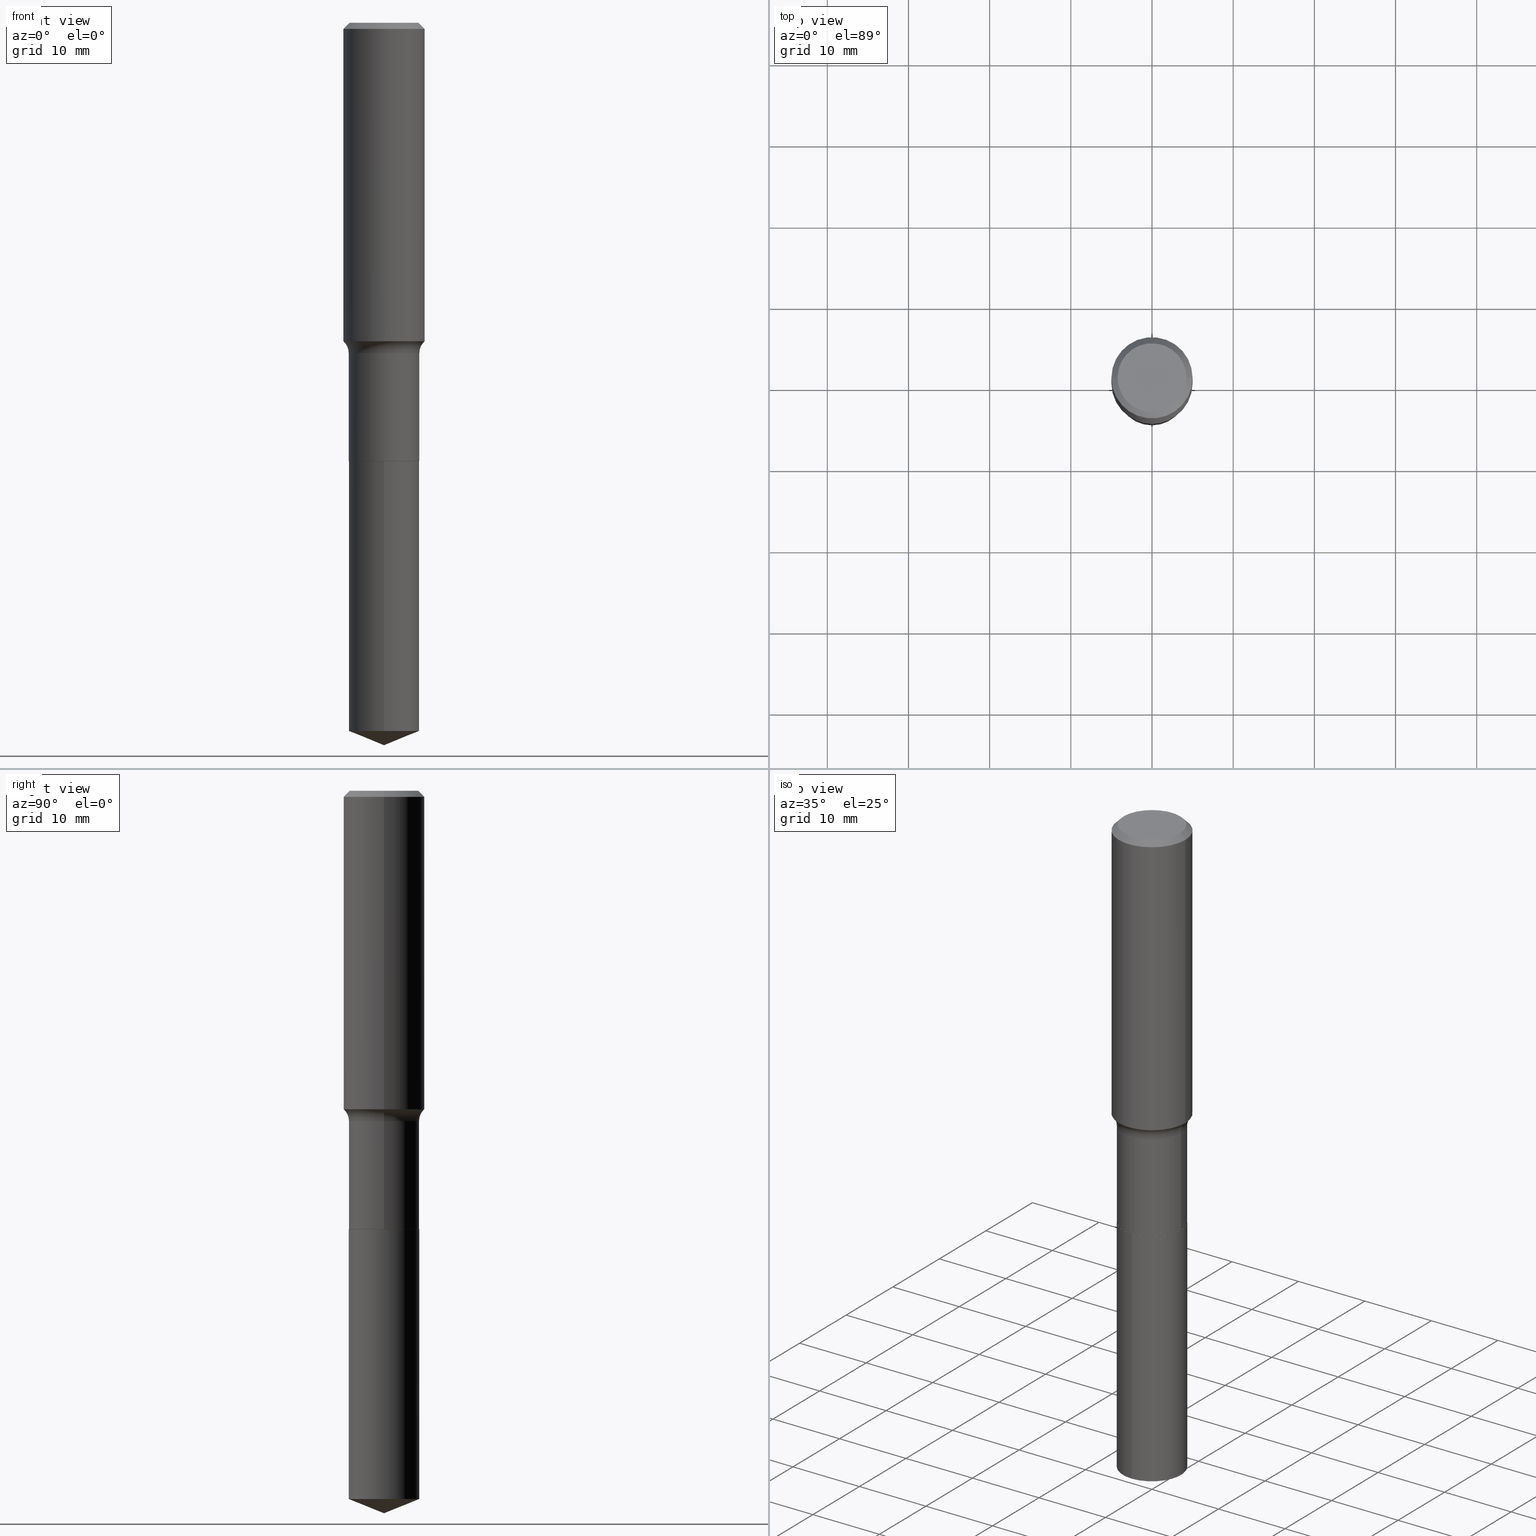
[diagram: canonical four-view strip — front | top / right | iso, engineering-drawing reading convention]
A machine part, canonical four-view strip (front | top / right | iso — engineering-drawing reading convention). The complete STEP part file that produces these views, byte-faithful:
ISO-10303-21;
HEADER;
FILE_DESCRIPTION (( 'STEP AP203' ),
    '1' );
FILE_NAME ('69177.STEP',
    '2024-04-19T17:19:37',
    ( '' ),
    ( '' ),
    'SwSTEP 2.0',
    'SolidWorks 2023',
    '' );
FILE_SCHEMA (( 'CONFIG_CONTROL_DESIGN' ));
ENDSEC;

DATA;
#1 = VERTEX_POINT ( 'NONE', #127 ) ;
#2 = ORIENTED_EDGE ( 'NONE', *, *, #244, .T. ) ;
#3 = AXIS2_PLACEMENT_3D ( 'NONE', #204, #172, #211 ) ;
#4 = LOCAL_TIME ( 13, 19, 37.00000000000000000, #8 ) ;
#5 = DATE_AND_TIME ( #266, #4 ) ;
#6 = ORIENTED_EDGE ( 'NONE', *, *, #350, .T. ) ;
#7 = CYLINDRICAL_SURFACE ( 'NONE', #92, 0.1712500000000000133 ) ;
#8 = COORDINATED_UNIVERSAL_TIME_OFFSET ( 5, 0, .BEHIND. ) ;
#9 = EDGE_CURVE ( 'NONE', #95, #182, #395, .T. ) ;
#10 = CARTESIAN_POINT ( 'NONE',  ( 5.198822135068982087E-29, -7.422540178246643119E-15, -2.125899999999999679 ) ) ;
#11 = VECTOR ( 'NONE', #389, 39.37007874015748854 ) ;
#12 = ORIENTED_EDGE ( 'NONE', *, *, #111, .F. ) ;
#13 = FACE_OUTER_BOUND ( 'NONE', #33, .T. ) ;
#14 = FACE_OUTER_BOUND ( 'NONE', #461, .T. ) ;
#15 = CARTESIAN_POINT ( 'NONE',  ( 3.917885574389206976E-29, -5.593702252960603405E-15, -1.602099999999999858 ) ) ;
#16 = APPROVAL ( #415, 'UNSPECIFIED' ) ;
#17 = DIRECTION ( 'NONE',  ( -2.445468806185136597E-29, 3.491481338843145583E-15, 1.000000000000000000 ) ) ;
#18 = PLANE ( 'NONE',  #100 ) ;
#19 = CARTESIAN_POINT ( 'NONE',  ( 8.568295373441645346E-29, -1.223434962097903768E-14, -3.503899999999999793 ) ) ;
#20 = LINE ( 'NONE', #434, #363 ) ;
#21 = DIRECTION ( 'NONE',  ( -6.982962677686265922E-15, -1.000000000000000000, 3.190479408658993096E-15 ) ) ;
#22 = DIRECTION ( 'NONE',  ( 2.445468806185136597E-29, -3.491481338843145583E-15, -1.000000000000000000 ) ) ;
#23 = CARTESIAN_POINT ( 'NONE',  ( 0.1968500000000002470, -6.766569378089535808E-15, -1.544322495727142641 ) ) ;
#24 = VECTOR ( 'NONE', #76, 39.37007874015748143 ) ;
#25 = CIRCLE ( 'NONE', #351, 0.1673224999999999851 ) ;
#26 = DIRECTION ( 'NONE',  ( 1.000000000000000000, -6.982962677686265922E-15, 4.876176775795935793E-29 ) ) ;
#27 = DIRECTION ( 'NONE',  ( -2.445359563184350382E-29, 3.491637781037997062E-15, 1.000000000000000000 ) ) ;
#28 = CARTESIAN_POINT ( 'NONE',  ( 0.1968500000000000527, -1.453583746094018101E-15, -0.02952750000000019595 ) ) ;
#29 = CARTESIAN_POINT ( 'NONE',  ( 8.399334429222156111E-29, -1.199243239908212747E-14, -3.434710508825729924 ) ) ;
#30 = APPROVAL_DATE_TIME ( #301, #16 ) ;
#31 = VECTOR ( 'NONE', #215, 39.37007874015748143 ) ;
#32 =( CONVERSION_BASED_UNIT ( 'INCH', #294 ) LENGTH_UNIT ( ) NAMED_UNIT ( #160 ) );
#33 = EDGE_LOOP ( 'NONE', ( #456, #366, #143, #285 ) ) ;
#34 = ADVANCED_FACE ( 'NONE', ( #13 ), #7, .T. ) ;
#35 = CC_DESIGN_APPROVAL ( #135, ( #440 ) ) ;
#36 = ORIENTED_EDGE ( 'NONE', *, *, #405, .T. ) ;
#37 = FACE_OUTER_BOUND ( 'NONE', #68, .T. ) ;
#38 = ORIENTED_EDGE ( 'NONE', *, *, #231, .T. ) ;
#39 = ORIENTED_EDGE ( 'NONE', *, *, #256, .F. ) ;
#40 = ORIENTED_EDGE ( 'NONE', *, *, #81, .F. ) ;
#41 = AXIS2_PLACEMENT_3D ( 'NONE', #10, #359, #21 ) ;
#42 = VECTOR ( 'NONE', #326, 39.37007874015748143 ) ;
#43 = ADVANCED_FACE ( 'NONE', ( #466 ), #459, .T. ) ;
#44 = FACE_OUTER_BOUND ( 'NONE', #226, .T. ) ;
#45 = PLANE ( 'NONE',  #3 ) ;
#46 = PRODUCT_DEFINITION_SHAPE ( 'NONE', 'NONE',  #193 ) ;
#47 = CARTESIAN_POINT ( 'NONE',  ( 0.1707500000000000129, -8.614881055461571866E-15, -2.125899999999999679 ) ) ;
#48 = EDGE_CURVE ( 'NONE', #296, #182, #49, .T. ) ;
#49 = CIRCLE ( 'NONE', #41, 0.1712500000000000133 ) ;
#50 = DIRECTION ( 'NONE',  ( -2.445468806185136597E-29, 3.491481338843145583E-15, 1.000000000000000000 ) ) ;
#51 = UNCERTAINTY_MEASURE_WITH_UNIT (LENGTH_MEASURE( 1.000000000000000082E-05 ), #32, 'distance_accuracy_value', 'NONE');
#52 = CARTESIAN_POINT ( 'NONE',  ( 0.1712499999999999856, -1.195832358553773135E-15, 8.350452728550539064E-30 ) ) ;
#53 = FACE_OUTER_BOUND ( 'NONE', #413, .T. ) ;
#54 = DIRECTION ( 'NONE',  ( -2.445468806185136597E-29, 3.491481338843145583E-15, 1.000000000000000000 ) ) ;
#55 = DIRECTION ( 'NONE',  ( 1.000000000000000000, -6.982962677686266711E-15, 4.876176775795935793E-29 ) ) ;
#56 = DIRECTION ( 'NONE',  ( -6.982962677686265922E-15, -1.000000000000000000, 3.190479408658993096E-15 ) ) ;
#57 = AXIS2_PLACEMENT_3D ( 'NONE', #360, #22, #438 ) ;
#58 = EDGE_CURVE ( 'NONE', #425, #248, #237, .T. ) ;
#59 = DIRECTION ( 'NONE',  ( -0.7071067811865459074, 2.468850131082239706E-15, -0.7071067811865492381 ) ) ;
#60 = CARTESIAN_POINT ( 'NONE',  ( 0.000000000000000000, 0.000000000000000000, 0.000000000000000000 ) ) ;
#61 = CC_DESIGN_PERSON_AND_ORGANIZATION_ASSIGNMENT ( #96, #373, ( #193 ) ) ;
#62 = DATE_AND_TIME ( #299, #291 ) ;
#63 = CLOSED_SHELL ( 'NONE', ( #478, #205, #325, #34, #67 ) ) ;
#64 = AXIS2_PLACEMENT_3D ( 'NONE', #419, #27, #176 ) ;
#65 = ORIENTED_EDGE ( 'NONE', *, *, #102, .F. ) ;
#66 = CARTESIAN_POINT ( 'NONE',  ( 5.197599400665889285E-29, -7.420794437577220826E-15, -2.125399999999999956 ) ) ;
#67 = ADVANCED_FACE ( 'NONE', ( #53 ), #45, .F. ) ;
#68 = EDGE_LOOP ( 'NONE', ( #335, #72, #426, #90 ) ) ;
#69 = AXIS2_PLACEMENT_3D ( 'NONE', #162, #284, #252 ) ;
#70 = CIRCLE ( 'NONE', #490, 0.07799999999999995826 ) ;
#71 = VERTEX_POINT ( 'NONE', #23 ) ;
#72 = ORIENTED_EDGE ( 'NONE', *, *, #424, .T. ) ;
#73 = ORIENTED_EDGE ( 'NONE', *, *, #487, .T. ) ;
#74 = DIRECTION ( 'NONE',  ( -1.000000000000000000, 6.982962677686265922E-15, -4.876176775795935793E-29 ) ) ;
#75 = DIRECTION ( 'NONE',  ( -2.445468806185136597E-29, 3.491481338843145583E-15, 1.000000000000000000 ) ) ;
#76 = DIRECTION ( 'NONE',  ( -2.445468806185136877E-29, 3.491481338843145188E-15, 1.000000000000000000 ) ) ;
#77 = CIRCLE ( 'NONE', #145, 0.1673224999999999851 ) ;
#78 = CONICAL_SURFACE ( 'NONE', #423, 97.44436430772920232, 1.186823891356147742 ) ;
#79 = LINE ( 'NONE', #28, #189 ) ;
#80 = DIRECTION ( 'NONE',  ( 2.445468806185136597E-29, -3.491481338843145583E-15, -1.000000000000000000 ) ) ;
#81 = EDGE_CURVE ( 'NONE', #191, #268, #316, .T. ) ;
#82 = CARTESIAN_POINT ( 'NONE',  ( -0.1707500000000000129, -6.209288456936270777E-15, -2.125899999999999679 ) ) ;
#83 = TOROIDAL_SURFACE ( 'NONE', #330, 0.2492499999999999438, 0.07799999999999999989 ) ;
#84 = CARTESIAN_POINT ( 'NONE',  ( -1.195832358553721070E-15, -0.1712500000000074241, -2.125899999999999235 ) ) ;
#85 = DIRECTION ( 'NONE',  ( -2.445359563184350382E-29, 3.491637781037997062E-15, 1.000000000000000000 ) ) ;
#86 = ADVANCED_FACE ( 'NONE', ( #472 ), #412, .F. ) ;
#87 = APPLICATION_CONTEXT ( 'configuration controlled 3d designs of mechanical parts and assemblies' ) ;
#88 = DIRECTION ( 'NONE',  ( 1.000000000000000000, -6.982962677686265922E-15, 0.000000000000000000 ) ) ;
#89 = PERSON_AND_ORGANIZATION ( #393, #198 ) ;
#90 = ORIENTED_EDGE ( 'NONE', *, *, #391, .F. ) ;
#91 = APPROVAL_STATUS ( 'not_yet_approved' ) ;
#92 = AXIS2_PLACEMENT_3D ( 'NONE', #150, #388, #465 ) ;
#93 = FACE_OUTER_BOUND ( 'NONE', #228, .T. ) ;
#94 = CARTESIAN_POINT ( 'NONE',  ( -0.1968500000000002470, -3.993269799643232468E-15, -1.544322495727142641 ) ) ;
#95 = VERTEX_POINT ( 'NONE', #474 ) ;
#96 = PERSON_AND_ORGANIZATION ( #393, #198 ) ;
#97 = EDGE_CURVE ( 'NONE', #191, #71, #304, .T. ) ;
#98 = EDGE_LOOP ( 'NONE', ( #235, #300 ) ) ;
#99 = AXIS2_PLACEMENT_3D ( 'NONE', #29, #489, #286 ) ;
#100 = AXIS2_PLACEMENT_3D ( 'NONE', #365, #217, #26 ) ;
#101 = ORIENTED_EDGE ( 'NONE', *, *, #97, .T. ) ;
#102 = EDGE_CURVE ( 'NONE', #71, #177, #20, .T. ) ;
#103 = ORIENTED_EDGE ( 'NONE', *, *, #362, .F. ) ;
#104 = DATE_AND_TIME ( #148, #446 ) ;
#105 = ORIENTED_EDGE ( 'NONE', *, *, #353, .F. ) ;
#106 = CARTESIAN_POINT ( 'NONE',  ( -5.008488096090108951E-47, 7.150793614331948590E-33, 2.048068690724054183E-18 ) ) ;
#107 = AXIS2_PLACEMENT_3D ( 'NONE', #356, #112, #159 ) ;
#108 = AXIS2_PLACEMENT_3D ( 'NONE', #287, #50, #118 ) ;
#109 = CARTESIAN_POINT ( 'NONE',  ( -1.001697619218021790E-46, 1.430158722866389718E-32, 4.096137381448108366E-18 ) ) ;
#110 = PERSON_AND_ORGANIZATION ( #393, #198 ) ;
#111 = EDGE_CURVE ( 'NONE', #220, #95, #319, .T. ) ;
#112 = DIRECTION ( 'NONE',  ( -2.445468806185136597E-29, 3.491481338843145583E-15, 1.000000000000000000 ) ) ;
#113 = DIRECTION ( 'NONE',  ( 1.000000000000000000, -6.982962677686265133E-15, 0.000000000000000000 ) ) ;
#114 = CARTESIAN_POINT ( 'NONE',  ( -0.1707500000000000129, -6.206639229762160364E-15, -2.125899999999999679 ) ) ;
#115 = PRODUCT_RELATED_PRODUCT_CATEGORY ( 'detail', '', ( #463 ) ) ;
#116 = DIRECTION ( 'NONE',  ( 1.000000000000000000, -6.982962677686269866E-15, 0.000000000000000000 ) ) ;
#117 = DESIGN_CONTEXT ( 'detailed design', #87, 'design' ) ;
#118 = DIRECTION ( 'NONE',  ( 1.000000000000000000, -6.982962677686266711E-15, 4.876176775795935793E-29 ) ) ;
#119 = APPLICATION_CONTEXT ( 'configuration controlled 3d designs of mechanical parts and assemblies' ) ;
#120 = DIRECTION ( 'NONE',  ( 2.438088387897960049E-29, -3.491481338843145188E-15, -1.000000000000000000 ) ) ;
#121 = CONICAL_SURFACE ( 'NONE', #290, 0.1707500000000000129, 0.7853981633975507526 ) ;
#122 = AXIS2_PLACEMENT_3D ( 'NONE', #179, #470, #116 ) ;
#123 = FACE_OUTER_BOUND ( 'NONE', #187, .T. ) ;
#124 = DIRECTION ( 'NONE',  ( 6.588037525764799179E-15, 0.9271838545667900888, 0.3746065934159054645 ) ) ;
#125 = VERTEX_POINT ( 'NONE', #47 ) ;
#126 = ADVANCED_FACE ( 'NONE', ( #44 ), #201, .T. ) ;
#127 = CARTESIAN_POINT ( 'NONE',  ( -1.195832358553689318E-15, -0.1712500000000120037, -3.434710508825729480 ) ) ;
#128 = CARTESIAN_POINT ( 'NONE',  ( -1.001697619218021790E-46, 1.430158722866389718E-32, 4.096137381448108366E-18 ) ) ;
#129 = CARTESIAN_POINT ( 'NONE',  ( -0.1673224999999999851, 1.219954130253505460E-15, 4.096137381439757534E-18 ) ) ;
#130 = VERTEX_POINT ( 'NONE', #114 ) ;
#131 = DIRECTION ( 'NONE',  ( -2.445468806185136597E-29, 3.491481338843145583E-15, 1.000000000000000000 ) ) ;
#132 = CIRCLE ( 'NONE', #386, 0.1968500000000000527 ) ;
#133 = PERSON_AND_ORGANIZATION ( #393, #198 ) ;
#134 = ADVANCED_FACE ( 'NONE', ( #216 ), #83, .F. ) ;
#135 = APPROVAL ( #91, 'UNSPECIFIED' ) ;
#136 = DIRECTION ( 'NONE',  ( 1.000000000000000000, -6.982962677686268288E-15, 0.000000000000000000 ) ) ;
#137 = AXIS2_PLACEMENT_3D ( 'NONE', #208, #75, #214 ) ;
#138 = CIRCLE ( 'NONE', #122, 0.1968500000000002470 ) ;
#139 = EDGE_LOOP ( 'NONE', ( #38, #199, #240, #269 ) ) ;
#140 = EDGE_CURVE ( 'NONE', #95, #1, #370, .T. ) ;
#141 = COORDINATED_UNIVERSAL_TIME_OFFSET ( 5, 0, .BEHIND. ) ;
#142 = ORIENTED_EDGE ( 'NONE', *, *, #362, .T. ) ;
#143 = ORIENTED_EDGE ( 'NONE', *, *, #400, .T. ) ;
#144 = EDGE_CURVE ( 'NONE', #248, #425, #397, .T. ) ;
#145 = AXIS2_PLACEMENT_3D ( 'NONE', #109, #306, #408 ) ;
#146 = CIRCLE ( 'NONE', #282, 0.07799999999999995826 ) ;
#147 = VERTEX_POINT ( 'NONE', #430 ) ;
#148 = CALENDAR_DATE ( 2024, 19, 4 ) ;
#149 = ORIENTED_EDGE ( 'NONE', *, *, #288, .F. ) ;
#150 = CARTESIAN_POINT ( 'NONE',  ( 5.198822135068982087E-29, -7.422540178246643119E-15, -2.125899999999999679 ) ) ;
#151 = PERSON_AND_ORGANIZATION_ROLE ( 'creator' ) ;
#152 = CARTESIAN_POINT ( 'NONE',  ( 0.000000000000000000, 0.000000000000000000, 0.000000000000000000 ) ) ;
#153 = ADVANCED_FACE ( 'NONE', ( #323 ), #202, .F. ) ;
#154 = DIRECTION ( 'NONE',  ( -2.445359563184350382E-29, 3.491637781037997457E-15, 1.000000000000000000 ) ) ;
#155 = AXIS2_PLACEMENT_3D ( 'NONE', #167, #212, #321 ) ;
#156 = CARTESIAN_POINT ( 'NONE',  ( 1.216804434989223333E-15, 0.1712499999999926026, -2.125900000000000567 ) ) ;
#157 = APPROVAL_PERSON_ORGANIZATION ( #372, #135, #381 ) ;
#158 = DIRECTION ( 'NONE',  ( 1.000000000000000000, -6.982962677686267499E-15, 4.876294436782262290E-29 ) ) ;
#159 = DIRECTION ( 'NONE',  ( 1.000000000000000000, -6.982962677686269866E-15, 0.000000000000000000 ) ) ;
#160 = DIMENSIONAL_EXPONENTS ( 1.000000000000000000, 0.000000000000000000, 0.000000000000000000, 0.000000000000000000, 0.000000000000000000, 0.000000000000000000, 0.000000000000000000 ) ;
#161 = CARTESIAN_POINT ( 'NONE',  ( 7.220858017463209485E-31, -1.030947152326916609E-16, -0.02952750000000019595 ) ) ;
#162 = CARTESIAN_POINT ( 'NONE',  ( 3.917885574389206976E-29, -5.593702252960603405E-15, -1.602099999999999858 ) ) ;
#163 = CYLINDRICAL_SURFACE ( 'NONE', #229, 0.1712499999999999856 ) ;
#164 = DIRECTION ( 'NONE',  ( -2.445468806185136877E-29, 3.491481338843145188E-15, 1.000000000000000000 ) ) ;
#165 = EDGE_CURVE ( 'NONE', #220, #1, #238, .T. ) ;
#166 = ORIENTED_EDGE ( 'NONE', *, *, #278, .T. ) ;
#167 = CARTESIAN_POINT ( 'NONE',  ( 3.917885574389206976E-29, -5.593702252960603405E-15, -1.602099999999999858 ) ) ;
#168 = VECTOR ( 'NONE', #59, 39.37007874015748143 ) ;
#169 = CARTESIAN_POINT ( 'NONE',  ( 3.917885574389206976E-29, -5.593702252960603405E-15, -1.602099999999999858 ) ) ;
#170 = CC_DESIGN_APPROVAL ( #337, ( #387 ) ) ;
#171 = CARTESIAN_POINT ( 'NONE',  ( 0.1712500000000000133, -8.616626796130994158E-15, -2.125399999999999956 ) ) ;
#172 = DIRECTION ( 'NONE',  ( 2.445359563184349822E-29, -3.491637781037997457E-15, -1.000000000000000000 ) ) ;
#173 = CC_DESIGN_PERSON_AND_ORGANIZATION_ASSIGNMENT ( #196, #151, ( #440 ) ) ;
#174 = ORIENTED_EDGE ( 'NONE', *, *, #48, .T. ) ;
#175 = DIRECTION ( 'NONE',  ( 0.7071067811865459074, -7.319954787623251312E-15, -0.7071067811865492381 ) ) ;
#176 = DIRECTION ( 'NONE',  ( -6.982962677686265922E-15, -1.000000000000000000, 3.498761904101799553E-15 ) ) ;
#177 = VERTEX_POINT ( 'NONE', #467 ) ;
#178 = EDGE_CURVE ( 'NONE', #147, #380, #77, .T. ) ;
#179 = CARTESIAN_POINT ( 'NONE',  ( 3.776592489990706683E-29, -5.391973174986991833E-15, -1.544322495727142641 ) ) ;
#180 = AXIS2_PLACEMENT_3D ( 'NONE', #106, #120, #74 ) ;
#181 = CARTESIAN_POINT ( 'NONE',  ( -0.1712500000000000133, -5.290443910279740453E-15, -2.125399999999999956 ) ) ;
#182 = VERTEX_POINT ( 'NONE', #453 ) ;
#183 = PERSON_AND_ORGANIZATION_ROLE ( 'design_owner' ) ;
#184 = DIRECTION ( 'NONE',  ( -2.445468806185136597E-29, 3.491481338843145583E-15, 1.000000000000000000 ) ) ;
#185 = EDGE_CURVE ( 'NONE', #182, #296, #439, .T. ) ;
#186 = DIRECTION ( 'NONE',  ( -6.982962677686265922E-15, -1.000000000000000000, 3.190479408658993096E-15 ) ) ;
#187 = EDGE_LOOP ( 'NONE', ( #103, #105, #166, #454 ) ) ;
#188 = DIRECTION ( 'NONE',  ( -1.000000000000000000, 7.105427357601001859E-15, 0.000000000000000000 ) ) ;
#189 = VECTOR ( 'NONE', #175, 39.37007874015748143 ) ;
#190 = LOCAL_TIME ( 13, 19, 37.00000000000000000, #431 ) ;
#191 = VERTEX_POINT ( 'NONE', #94 ) ;
#192 = ORIENTED_EDGE ( 'NONE', *, *, #353, .T. ) ;
#193 = PRODUCT_DEFINITION ( 'UNKNOWN', '', #440, #117 ) ;
#194 = PERSON_AND_ORGANIZATION_ROLE ( 'design_supplier' ) ;
#195 = ORIENTED_EDGE ( 'NONE', *, *, #278, .F. ) ;
#196 = PERSON_AND_ORGANIZATION ( #393, #198 ) ;
#197 = VECTOR ( 'NONE', #209, 39.37007874015748143 ) ;
#198 = ORGANIZATION ( 'UNSPECIFIED', 'UNSPECIFIED', '' ) ;
#199 = ORIENTED_EDGE ( 'NONE', *, *, #376, .T. ) ;
#200 = CYLINDRICAL_SURFACE ( 'NONE', #354, 0.1712499999999999856 ) ;
#201 = CYLINDRICAL_SURFACE ( 'NONE', #482, 0.1968500000000001360 ) ;
#202 = PLANE ( 'NONE',  #180 ) ;
#203 = SHAPE_DEFINITION_REPRESENTATION ( #46, #346 ) ;
#204 = CARTESIAN_POINT ( 'NONE',  ( 5.198822135068982087E-29, -7.422540178246643119E-15, -2.125899999999999679 ) ) ;
#205 = ADVANCED_FACE ( 'NONE', ( #261 ), #320, .T. ) ;
#206 = CARTESIAN_POINT ( 'NONE',  ( 5.198822135068982087E-29, -7.422540178246643119E-15, -2.125899999999999679 ) ) ;
#207 = CARTESIAN_POINT ( 'NONE',  ( 0.000000000000000000, 0.000000000000000000, 0.000000000000000000 ) ) ;
#208 = CARTESIAN_POINT ( 'NONE',  ( 7.220858017463209485E-31, -1.030947152326916609E-16, -0.02952750000000019595 ) ) ;
#209 = DIRECTION ( 'NONE',  ( -2.445468806185136877E-29, 3.491481338843145188E-15, 1.000000000000000000 ) ) ;
#210 = CARTESIAN_POINT ( 'NONE',  ( -0.1968500000000000527, -1.348830569766083183E-15, -0.02952750000000019595 ) ) ;
#211 = DIRECTION ( 'NONE',  ( 6.982962677686265922E-15, 1.000000000000000000, -3.491637781037997457E-15 ) ) ;
#212 = DIRECTION ( 'NONE',  ( -2.445468806185136597E-29, 3.491481338843145583E-15, 1.000000000000000000 ) ) ;
#213 = CARTESIAN_POINT ( 'NONE',  ( 0.1712499999999999578, -6.789534611514375948E-15, -1.602099999999999858 ) ) ;
#214 = DIRECTION ( 'NONE',  ( 1.000000000000000000, -6.982962677686266711E-15, 0.000000000000000000 ) ) ;
#215 = DIRECTION ( 'NONE',  ( -0.7071067811866199593, 7.493145998870616062E-15, 0.7071067811864750752 ) ) ;
#216 = FACE_OUTER_BOUND ( 'NONE', #483, .T. ) ;
#217 = DIRECTION ( 'NONE',  ( -2.438088387897960049E-29, 3.491481338843145188E-15, 1.000000000000000000 ) ) ;
#218 = CC_DESIGN_PERSON_AND_ORGANIZATION_ASSIGNMENT ( #236, #348, ( #387 ) ) ;
#219 = APPLICATION_PROTOCOL_DEFINITION ( 'international standard', 'config_control_design', 1994, #87 ) ;
#220 = VERTEX_POINT ( 'NONE', #19 ) ;
#221 = AXIS2_PLACEMENT_3D ( 'NONE', #485, #416, #186 ) ;
#222 = DATE_TIME_ROLE ( 'creation_date' ) ;
#223 = APPROVAL_PERSON_ORGANIZATION ( #273, #337, #427 ) ;
#224 = CALENDAR_DATE ( 2024, 19, 4 ) ;
#225 = ADVANCED_FACE ( 'NONE', ( #329 ), #163, .T. ) ;
#226 = EDGE_LOOP ( 'NONE', ( #36, #234, #39, #65 ) ) ;
#227 = CARTESIAN_POINT ( 'NONE',  ( 0.2492499999999999438, -7.334205700373904783E-15, -1.602099999999999858 ) ) ;
#228 = EDGE_LOOP ( 'NONE', ( #307, #352, #255, #420 ) ) ;
#229 = AXIS2_PLACEMENT_3D ( 'NONE', #60, #318, #55 ) ;
#230 = AXIS2_PLACEMENT_3D ( 'NONE', #473, #443, #289 ) ;
#231 = EDGE_CURVE ( 'NONE', #125, #130, #340, .T. ) ;
#232 = EDGE_LOOP ( 'NONE', ( #339, #262, #464, #428 ) ) ;
#233 = COORDINATED_UNIVERSAL_TIME_OFFSET ( 5, 0, .BEHIND. ) ;
#234 = ORIENTED_EDGE ( 'NONE', *, *, #81, .T. ) ;
#235 = ORIENTED_EDGE ( 'NONE', *, *, #231, .F. ) ;
#236 = PERSON_AND_ORGANIZATION ( #393, #198 ) ;
#237 = CIRCLE ( 'NONE', #155, 0.1712499999999999578 ) ;
#238 = LINE ( 'NONE', #312, #11 ) ;
#239 = ADVANCED_FACE ( 'NONE', ( #37 ), #121, .T. ) ;
#240 = ORIENTED_EDGE ( 'NONE', *, *, #418, .F. ) ;
#241 = MANIFOLD_SOLID_BREP ( 'Body-Move/Copy2[1]', #63 ) ;
#242 = DIRECTION ( 'NONE',  ( -2.445468806185136597E-29, 3.491481338843145583E-15, 1.000000000000000000 ) ) ;
#243 = VECTOR ( 'NONE', #154, 39.37007874015748143 ) ;
#244 = EDGE_CURVE ( 'NONE', #435, #425, #390, .T. ) ;
#245 = CIRCLE ( 'NONE', #260, 0.1707500000000000129 ) ;
#246 = DIRECTION ( 'NONE',  ( -2.445468806185136597E-29, 3.491481338843145583E-15, 1.000000000000000000 ) ) ;
#247 = LINE ( 'NONE', #82, #31 ) ;
#248 = VERTEX_POINT ( 'NONE', #213 ) ;
#249 = FACE_OUTER_BOUND ( 'NONE', #281, .T. ) ;
#250 = DIRECTION ( 'NONE',  ( -2.445359563184350382E-29, 3.491637781037997062E-15, 1.000000000000000000 ) ) ;
#251 = ADVANCED_FACE ( 'NONE', ( #14 ), #200, .T. ) ;
#252 = DIRECTION ( 'NONE',  ( 1.000000000000000000, -6.982962677686265922E-15, 4.883557194083111780E-29 ) ) ;
#253 = AXIS2_PLACEMENT_3D ( 'NONE', #272, #429, #433 ) ;
#254 = DIRECTION ( 'NONE',  ( -2.445359563184350382E-29, 3.491637781037997457E-15, 1.000000000000000000 ) ) ;
#255 = ORIENTED_EDGE ( 'NONE', *, *, #48, .F. ) ;
#256 = EDGE_CURVE ( 'NONE', #177, #268, #132, .T. ) ;
#257 = CLOSED_SHELL ( 'NONE', ( #43, #264, #126, #134, #225, #251, #86, #314, #295, #153, #383, #239 ) ) ;
#258 = CONICAL_SURFACE ( 'NONE', #450, 0.1968500000000000527, 0.7853981633974459475 ) ;
#259 = DIRECTION ( 'NONE',  ( -2.445468806185136597E-29, 3.491481338843145583E-15, 1.000000000000000000 ) ) ;
#260 = AXIS2_PLACEMENT_3D ( 'NONE', #452, #259, #263 ) ;
#261 = FACE_OUTER_BOUND ( 'NONE', #374, .T. ) ;
#262 = ORIENTED_EDGE ( 'NONE', *, *, #405, .F. ) ;
#263 = DIRECTION ( 'NONE',  ( 1.000000000000000000, -6.982962677686265922E-15, 0.000000000000000000 ) ) ;
#264 = ADVANCED_FACE ( 'NONE', ( #315 ), #258, .T. ) ;
#265 = ORIENTED_EDGE ( 'NONE', *, *, #165, .T. ) ;
#266 = CALENDAR_DATE ( 2024, 19, 4 ) ;
#267 = APPROVAL_PERSON_ORGANIZATION ( #89, #16, #292 ) ;
#268 = VERTEX_POINT ( 'NONE', #210 ) ;
#269 = ORIENTED_EDGE ( 'NONE', *, *, #334, .F. ) ;
#270 = APPROVAL_STATUS ( 'not_yet_approved' ) ;
#271 = ORIENTED_EDGE ( 'NONE', *, *, #391, .T. ) ;
#272 = CARTESIAN_POINT ( 'NONE',  ( 5.198822135068982087E-29, -7.422540178246643119E-15, -2.125899999999999679 ) ) ;
#273 = PERSON_AND_ORGANIZATION ( #393, #198 ) ;
#274 = CONICAL_SURFACE ( 'NONE', #57, 0.1968500000000000527, 0.7853981633974459475 ) ;
#275 = AXIS2_PLACEMENT_3D ( 'NONE', #336, #85, #455 ) ;
#276 = CALENDAR_DATE ( 2024, 19, 4 ) ;
#277 = CARTESIAN_POINT ( 'NONE',  ( 7.220858017463209485E-31, -1.030947152326916609E-16, -0.02952750000000019595 ) ) ;
#278 = EDGE_CURVE ( 'NONE', #380, #268, #396, .T. ) ;
#279 = DIRECTION ( 'NONE',  ( -2.445359563184350382E-29, 3.491637781037997062E-15, 1.000000000000000000 ) ) ;
#280 = AXIS2_PLACEMENT_3D ( 'NONE', #206, #332, #88 ) ;
#281 = EDGE_LOOP ( 'NONE', ( #40, #101, #458, #149 ) ) ;
#282 = AXIS2_PLACEMENT_3D ( 'NONE', #227, #421, #375 ) ;
#283 = LINE ( 'NONE', #477, #42 ) ;
#284 = DIRECTION ( 'NONE',  ( -2.445468806185136597E-29, 3.491481338843145583E-15, 1.000000000000000000 ) ) ;
#285 = ORIENTED_EDGE ( 'NONE', *, *, #185, .F. ) ;
#286 = DIRECTION ( 'NONE',  ( -6.982962677686265922E-15, -1.000000000000000000, 3.190479408658993096E-15 ) ) ;
#287 = CARTESIAN_POINT ( 'NONE',  ( 0.000000000000000000, 0.000000000000000000, 0.000000000000000000 ) ) ;
#288 = EDGE_CURVE ( 'NONE', #268, #177, #298, .T. ) ;
#289 = DIRECTION ( 'NONE',  ( 1.000000000000000000, -6.982962677686268288E-15, 0.000000000000000000 ) ) ;
#290 = AXIS2_PLACEMENT_3D ( 'NONE', #328, #131, #406 ) ;
#291 = LOCAL_TIME ( 13, 19, 37.00000000000000000, #410 ) ;
#292 = APPROVAL_ROLE ( '' ) ;
#293 = DIRECTION ( 'NONE',  ( -2.445468806185136597E-29, 3.491481338843145583E-15, 1.000000000000000000 ) ) ;
#294 = LENGTH_MEASURE_WITH_UNIT ( LENGTH_MEASURE( 0.02539999999999999897 ), #484 );
#295 = ADVANCED_FACE ( 'NONE', ( #123 ), #274, .T. ) ;
#296 = VERTEX_POINT ( 'NONE', #317 ) ;
#297 = CARTESIAN_POINT ( 'NONE',  ( -0.1712499999999999578, -5.290443910279740453E-15, -1.602099999999999858 ) ) ;
#298 = CIRCLE ( 'NONE', #137, 0.1968500000000000527 ) ;
#299 = CALENDAR_DATE ( 2024, 19, 4 ) ;
#300 = ORIENTED_EDGE ( 'NONE', *, *, #424, .F. ) ;
#301 = DATE_AND_TIME ( #224, #476 ) ;
#302 = VERTEX_POINT ( 'NONE', #171 ) ;
#303 = ORIENTED_EDGE ( 'NONE', *, *, #350, .F. ) ;
#304 = CIRCLE ( 'NONE', #107, 0.1968500000000002470 ) ;
#305 = CIRCLE ( 'NONE', #230, 0.1712500000000000133 ) ;
#306 = DIRECTION ( 'NONE',  ( -2.445468806185136597E-29, 3.491481338843145583E-15, 1.000000000000000000 ) ) ;
#307 = ORIENTED_EDGE ( 'NONE', *, *, #368, .T. ) ;
#308 = DATE_AND_TIME ( #276, #190 ) ;
#309 = ORIENTED_EDGE ( 'NONE', *, *, #442, .F. ) ;
#310 = ORIENTED_EDGE ( 'NONE', *, *, #418, .T. ) ;
#311 = CC_DESIGN_DATE_AND_TIME_ASSIGNMENT ( #104, #384, ( #387 ) ) ;
#312 = CARTESIAN_POINT ( 'NONE',  ( 8.568295373441645346E-29, -1.223434962097903768E-14, -3.503899999999999793 ) ) ;
#313 =( GEOMETRIC_REPRESENTATION_CONTEXT ( 3 ) GLOBAL_UNCERTAINTY_ASSIGNED_CONTEXT ( ( #51 ) ) GLOBAL_UNIT_ASSIGNED_CONTEXT ( ( #32, #369, #407 ) ) REPRESENTATION_CONTEXT ( 'NONE', 'WORKASPACE' ) );
#314 = ADVANCED_FACE ( 'NONE', ( #249 ), #401, .T. ) ;
#315 = FACE_OUTER_BOUND ( 'NONE', #437, .T. ) ;
#316 = LINE ( 'NONE', #358, #24 ) ;
#317 = CARTESIAN_POINT ( 'NONE',  ( -1.195832358553721070E-15, -0.1712500000000074241, -2.125899999999999235 ) ) ;
#318 = DIRECTION ( 'NONE',  ( -2.445468806185136597E-29, 3.491481338843145583E-15, 1.000000000000000000 ) ) ;
#319 = LINE ( 'NONE', #475, #432 ) ;
#320 = CONICAL_SURFACE ( 'NONE', #64, 97.44436430772920232, 1.186823891356147742 ) ;
#321 = DIRECTION ( 'NONE',  ( 1.000000000000000000, -6.982962677686265133E-15, 0.000000000000000000 ) ) ;
#322 = CIRCLE ( 'NONE', #468, 0.1712500000000000133 ) ;
#323 = FACE_OUTER_BOUND ( 'NONE', #343, .T. ) ;
#324 = DIRECTION ( 'NONE',  ( -6.982962677686265922E-15, -1.000000000000000000, 3.498761904101799553E-15 ) ) ;
#325 = ADVANCED_FACE ( 'NONE', ( #355 ), #78, .T. ) ;
#326 = DIRECTION ( 'NONE',  ( 0.7071067811866199593, -2.468850131083015945E-15, 0.7071067811864750752 ) ) ;
#327 = ORIENTED_EDGE ( 'NONE', *, *, #144, .F. ) ;
#328 = CARTESIAN_POINT ( 'NONE',  ( 5.198822135068982087E-29, -7.422540178246643119E-15, -2.125899999999999679 ) ) ;
#329 = FACE_OUTER_BOUND ( 'NONE', #385, .T. ) ;
#330 = AXIS2_PLACEMENT_3D ( 'NONE', #169, #293, #409 ) ;
#331 = VECTOR ( 'NONE', #402, 39.37007874015748143 ) ;
#332 = DIRECTION ( 'NONE',  ( -2.445468806185136597E-29, 3.491481338843145583E-15, 1.000000000000000000 ) ) ;
#333 = DIRECTION ( 'NONE',  ( 7.105427357601001859E-15, 1.000000000000000000, -3.491481338843145583E-15 ) ) ;
#334 = EDGE_CURVE ( 'NONE', #125, #302, #283, .T. ) ;
#335 = ORIENTED_EDGE ( 'NONE', *, *, #376, .F. ) ;
#336 = CARTESIAN_POINT ( 'NONE',  ( 5.198822135068982087E-29, -7.422540178246643119E-15, -2.125899999999999679 ) ) ;
#337 = APPROVAL ( #270, 'UNSPECIFIED' ) ;
#338 = CYLINDRICAL_SURFACE ( 'NONE', #275, 0.1712500000000000133 ) ;
#339 = ORIENTED_EDGE ( 'NONE', *, *, #487, .F. ) ;
#340 = CIRCLE ( 'NONE', #280, 0.1707500000000000129 ) ;
#341 = CARTESIAN_POINT ( 'NONE',  ( 0.000000000000000000, 0.000000000000000000, 0.000000000000000000 ) ) ;
#342 = AXIS2_PLACEMENT_3D ( 'NONE', #66, #184, #136 ) ;
#343 = EDGE_LOOP ( 'NONE', ( #192, #377 ) ) ;
#344 = CC_DESIGN_PERSON_AND_ORGANIZATION_ASSIGNMENT ( #110, #194, ( #440 ) ) ;
#345 = SECURITY_CLASSIFICATION_LEVEL ( 'unclassified' ) ;
#346 = ADVANCED_BREP_SHAPE_REPRESENTATION ( '69177', ( #241, #411, #460 ), #313 ) ;
#347 = ORIENTED_EDGE ( 'NONE', *, *, #185, .T. ) ;
#348 = PERSON_AND_ORGANIZATION_ROLE ( 'classification_officer' ) ;
#349 = ORIENTED_EDGE ( 'NONE', *, *, #140, .F. ) ;
#350 = EDGE_CURVE ( 'NONE', #302, #248, #444, .T. ) ;
#351 = AXIS2_PLACEMENT_3D ( 'NONE', #128, #17, #158 ) ;
#352 = ORIENTED_EDGE ( 'NONE', *, *, #9, .T. ) ;
#353 = EDGE_CURVE ( 'NONE', #380, #147, #25, .T. ) ;
#354 = AXIS2_PLACEMENT_3D ( 'NONE', #152, #54, #404 ) ;
#355 = FACE_OUTER_BOUND ( 'NONE', #382, .T. ) ;
#356 = CARTESIAN_POINT ( 'NONE',  ( 3.776592489990706683E-29, -5.391973174986991833E-15, -1.544322495727142641 ) ) ;
#357 = CARTESIAN_POINT ( 'NONE',  ( -0.1968500000000000527, 1.271501487869850317E-15, -0.02952750000000019595 ) ) ;
#358 = CARTESIAN_POINT ( 'NONE',  ( -0.1968500000000001360, 1.398703375343758182E-15, -9.682923725166790684E-30 ) ) ;
#359 = DIRECTION ( 'NONE',  ( -2.445359563184350382E-29, 3.491637781037997062E-15, 1.000000000000000000 ) ) ;
#360 = CARTESIAN_POINT ( 'NONE',  ( 7.220858017463209485E-31, -1.030947152326916609E-16, -0.02952750000000019595 ) ) ;
#361 = CARTESIAN_POINT ( 'NONE',  ( -0.1712499999999999856, 1.216804434989171466E-15, -8.423676342061525262E-30 ) ) ;
#362 = EDGE_CURVE ( 'NONE', #147, #177, #79, .T. ) ;
#363 = VECTOR ( 'NONE', #164, 39.37007874015748143 ) ;
#364 = ORIENTED_EDGE ( 'NONE', *, *, #165, .F. ) ;
#365 = CARTESIAN_POINT ( 'NONE',  ( 5.198822135068982087E-29, -7.422540178246643119E-15, -2.125899999999999679 ) ) ;
#366 = ORIENTED_EDGE ( 'NONE', *, *, #140, .T. ) ;
#367 = CARTESIAN_POINT ( 'NONE',  ( 8.399334429222156111E-29, -1.199243239908212747E-14, -3.434710508825729924 ) ) ;
#368 = EDGE_CURVE ( 'NONE', #1, #95, #322, .T. ) ;
#369 =( NAMED_UNIT ( * ) PLANE_ANGLE_UNIT ( ) SI_UNIT ( $, .RADIAN. ) );
#370 = CIRCLE ( 'NONE', #99, 0.1712500000000000133 ) ;
#371 = VECTOR ( 'NONE', #254, 39.37007874015748143 ) ;
#372 = PERSON_AND_ORGANIZATION ( #393, #198 ) ;
#373 = PERSON_AND_ORGANIZATION_ROLE ( 'creator' ) ;
#374 = EDGE_LOOP ( 'NONE', ( #364, #422, #491 ) ) ;
#375 = DIRECTION ( 'NONE',  ( 1.000000000000000000, -6.982962677686274599E-15, 0.000000000000000000 ) ) ;
#376 = EDGE_CURVE ( 'NONE', #130, #435, #247, .T. ) ;
#377 = ORIENTED_EDGE ( 'NONE', *, *, #178, .T. ) ;
#378 = AXIS2_PLACEMENT_3D ( 'NONE', #15, #246, #113 ) ;
#379 = DIRECTION ( 'NONE',  ( 0.000000000000000000, 0.000000000000000000, 1.000000000000000000 ) ) ;
#380 = VERTEX_POINT ( 'NONE', #129 ) ;
#381 = APPROVAL_ROLE ( '' ) ;
#382 = EDGE_LOOP ( 'NONE', ( #12, #265, #349 ) ) ;
#383 = ADVANCED_FACE ( 'NONE', ( #398 ), #18, .F. ) ;
#384 = DATE_TIME_ROLE ( 'classification_date' ) ;
#385 = EDGE_LOOP ( 'NONE', ( #310, #2, #327, #303 ) ) ;
#386 = AXIS2_PLACEMENT_3D ( 'NONE', #161, #242, #471 ) ;
#387 = SECURITY_CLASSIFICATION ( '', '', #345 ) ;
#388 = DIRECTION ( 'NONE',  ( -2.445359563184350382E-29, 3.491637781037997062E-15, 1.000000000000000000 ) ) ;
#389 = DIRECTION ( 'NONE',  ( -6.474490251793184940E-15, -0.9271838545667873133, 0.3746065934159118482 ) ) ;
#390 = LINE ( 'NONE', #361, #197 ) ;
#391 = EDGE_CURVE ( 'NONE', #435, #302, #305, .T. ) ;
#392 = DIRECTION ( 'NONE',  ( -2.445468806185136597E-29, 3.491481338843145583E-15, 1.000000000000000000 ) ) ;
#393 = PERSON ( 'UNSPECIFIED', 'UNSPECIFIED', 'UNSPECIFIED', ('UNSPECIFIED'), ('UNSPECIFIED'), ('UNSPECIFIED') ) ;
#394 = CC_DESIGN_DATE_AND_TIME_ASSIGNMENT ( #62, #222, ( #193 ) ) ;
#395 = LINE ( 'NONE', #156, #243 ) ;
#396 = LINE ( 'NONE', #357, #168 ) ;
#397 = CIRCLE ( 'NONE', #378, 0.1712499999999999578 ) ;
#398 = FACE_OUTER_BOUND ( 'NONE', #98, .T. ) ;
#399 = ORIENTED_EDGE ( 'NONE', *, *, #244, .F. ) ;
#400 = EDGE_CURVE ( 'NONE', #1, #296, #445, .T. ) ;
#401 = CYLINDRICAL_SURFACE ( 'NONE', #108, 0.1968500000000001360 ) ;
#402 = DIRECTION ( 'NONE',  ( -2.445468806185136877E-29, 3.491481338843145188E-15, 1.000000000000000000 ) ) ;
#403 = CC_DESIGN_APPROVAL ( #16, ( #193 ) ) ;
#404 = DIRECTION ( 'NONE',  ( 1.000000000000000000, -6.982962677686266711E-15, 4.876176775795935793E-29 ) ) ;
#405 = EDGE_CURVE ( 'NONE', #71, #191, #138, .T. ) ;
#406 = DIRECTION ( 'NONE',  ( 1.000000000000000000, -6.982962677686265922E-15, 0.000000000000000000 ) ) ;
#407 =( NAMED_UNIT ( * ) SI_UNIT ( $, .STERADIAN. ) SOLID_ANGLE_UNIT ( ) );
#408 = DIRECTION ( 'NONE',  ( 1.000000000000000000, -6.982962677686267499E-15, 4.876294436782262290E-29 ) ) ;
#409 = DIRECTION ( 'NONE',  ( 1.000000000000000000, -6.982962677686265922E-15, 4.883557194083111780E-29 ) ) ;
#410 = COORDINATED_UNIVERSAL_TIME_OFFSET ( 5, 0, .BEHIND. ) ;
#411 = MANIFOLD_SOLID_BREP ( 'Body-Move/Copy2[2]', #257 ) ;
#412 = TOROIDAL_SURFACE ( 'NONE', #69, 0.2492499999999999438, 0.07799999999999999989 ) ;
#413 = EDGE_LOOP ( 'NONE', ( #174, #347 ) ) ;
#414 = CIRCLE ( 'NONE', #342, 0.1712500000000000133 ) ;
#415 = APPROVAL_STATUS ( 'not_yet_approved' ) ;
#416 = DIRECTION ( 'NONE',  ( -2.445359563184350382E-29, 3.491637781037997062E-15, 1.000000000000000000 ) ) ;
#417 = MECHANICAL_CONTEXT ( 'NONE', #119, 'mechanical' ) ;
#418 = EDGE_CURVE ( 'NONE', #302, #435, #414, .T. ) ;
#419 = CARTESIAN_POINT ( 'NONE',  ( -8.770547093742795597E-28, 1.252320373310577024E-13, 35.86617874015747987 ) ) ;
#420 = ORIENTED_EDGE ( 'NONE', *, *, #400, .F. ) ;
#421 = DIRECTION ( 'NONE',  ( -6.982962677686266711E-15, -1.000000000000000000, 3.491481338843145583E-15 ) ) ;
#422 = ORIENTED_EDGE ( 'NONE', *, *, #111, .T. ) ;
#423 = AXIS2_PLACEMENT_3D ( 'NONE', #479, #250, #324 ) ;
#424 = EDGE_CURVE ( 'NONE', #130, #125, #245, .T. ) ;
#425 = VERTEX_POINT ( 'NONE', #297 ) ;
#426 = ORIENTED_EDGE ( 'NONE', *, *, #334, .T. ) ;
#427 = APPROVAL_ROLE ( '' ) ;
#428 = ORIENTED_EDGE ( 'NONE', *, *, #144, .T. ) ;
#429 = DIRECTION ( 'NONE',  ( -2.445468806185136597E-29, 3.491481338843145583E-15, 1.000000000000000000 ) ) ;
#430 = CARTESIAN_POINT ( 'NONE',  ( 0.1673224999999999851, -1.300749711163072594E-15, 4.096137381456741925E-18 ) ) ;
#431 = COORDINATED_UNIVERSAL_TIME_OFFSET ( 5, 0, .BEHIND. ) ;
#432 = VECTOR ( 'NONE', #124, 39.37007874015748143 ) ;
#433 = DIRECTION ( 'NONE',  ( 1.000000000000000000, -6.982962677686265922E-15, 0.000000000000000000 ) ) ;
#434 = CARTESIAN_POINT ( 'NONE',  ( 0.1968500000000001360, -1.374596203102542594E-15, 9.598753983154306463E-30 ) ) ;
#435 = VERTEX_POINT ( 'NONE', #181 ) ;
#436 = DIRECTION ( 'NONE',  ( -1.000000000000000000, 6.982962677686266711E-15, 0.000000000000000000 ) ) ;
#437 = EDGE_LOOP ( 'NONE', ( #480, #142, #488, #195 ) ) ;
#438 = DIRECTION ( 'NONE',  ( -1.000000000000000000, 6.982962677686266711E-15, 0.000000000000000000 ) ) ;
#439 = CIRCLE ( 'NONE', #221, 0.1712500000000000133 ) ;
#440 = PRODUCT_DEFINITION_FORMATION_WITH_SPECIFIED_SOURCE ( 'ANY', '', #463, .NOT_KNOWN. ) ;
#441 = ORIENTED_EDGE ( 'NONE', *, *, #58, .F. ) ;
#442 = EDGE_CURVE ( 'NONE', #71, #248, #146, .T. ) ;
#443 = DIRECTION ( 'NONE',  ( -2.445468806185136597E-29, 3.491481338843145583E-15, 1.000000000000000000 ) ) ;
#444 = LINE ( 'NONE', #52, #331 ) ;
#445 = LINE ( 'NONE', #84, #371 ) ;
#446 = LOCAL_TIME ( 13, 19, 37.00000000000000000, #233 ) ;
#447 = APPLICATION_PROTOCOL_DEFINITION ( 'international standard', 'config_control_design', 1994, #119 ) ;
#448 = ORIENTED_EDGE ( 'NONE', *, *, #58, .T. ) ;
#449 = CARTESIAN_POINT ( 'NONE',  ( -0.2492499999999999438, -3.822674484078553894E-15, -1.602099999999999858 ) ) ;
#450 = AXIS2_PLACEMENT_3D ( 'NONE', #277, #80, #436 ) ;
#451 = CC_DESIGN_SECURITY_CLASSIFICATION ( #387, ( #440 ) ) ;
#452 = CARTESIAN_POINT ( 'NONE',  ( 5.198822135068982087E-29, -7.422540178246643119E-15, -2.125899999999999679 ) ) ;
#453 = CARTESIAN_POINT ( 'NONE',  ( 1.216804434989255677E-15, 0.1712499999999926026, -2.125900000000000567 ) ) ;
#454 = ORIENTED_EDGE ( 'NONE', *, *, #288, .T. ) ;
#455 = DIRECTION ( 'NONE',  ( -6.982962677686265922E-15, -1.000000000000000000, 3.190479408658993096E-15 ) ) ;
#456 = ORIENTED_EDGE ( 'NONE', *, *, #9, .F. ) ;
#457 = CC_DESIGN_PERSON_AND_ORGANIZATION_ASSIGNMENT ( #133, #183, ( #463 ) ) ;
#458 = ORIENTED_EDGE ( 'NONE', *, *, #102, .T. ) ;
#459 = CONICAL_SURFACE ( 'NONE', #253, 0.1707500000000000129, 0.7853981633975507526 ) ;
#460 = AXIS2_PLACEMENT_3D ( 'NONE', #341, #379, #481 ) ;
#461 = EDGE_LOOP ( 'NONE', ( #399, #271, #6, #441 ) ) ;
#462 = APPROVAL_DATE_TIME ( #5, #135 ) ;
#463 = PRODUCT ( '69177', '69177', '', ( #417 ) ) ;
#464 = ORIENTED_EDGE ( 'NONE', *, *, #442, .T. ) ;
#465 = DIRECTION ( 'NONE',  ( -6.982962677686265922E-15, -1.000000000000000000, 3.190479408658993096E-15 ) ) ;
#466 = FACE_OUTER_BOUND ( 'NONE', #139, .T. ) ;
#467 = CARTESIAN_POINT ( 'NONE',  ( 0.1968500000000000527, -1.477690918335233688E-15, -0.02952750000000019595 ) ) ;
#468 = AXIS2_PLACEMENT_3D ( 'NONE', #367, #279, #56 ) ;
#469 = DIRECTION ( 'NONE',  ( 1.000000000000000000, -6.982962677686266711E-15, 4.876176775795935793E-29 ) ) ;
#470 = DIRECTION ( 'NONE',  ( -2.445468806185136597E-29, 3.491481338843145583E-15, 1.000000000000000000 ) ) ;
#471 = DIRECTION ( 'NONE',  ( 1.000000000000000000, -6.982962677686266711E-15, 0.000000000000000000 ) ) ;
#472 = FACE_OUTER_BOUND ( 'NONE', #232, .T. ) ;
#473 = CARTESIAN_POINT ( 'NONE',  ( 5.197599400665889285E-29, -7.420794437577220826E-15, -2.125399999999999956 ) ) ;
#474 = CARTESIAN_POINT ( 'NONE',  ( 1.216804434989255677E-15, 0.1712499999999880784, -3.434710508825730368 ) ) ;
#475 = CARTESIAN_POINT ( 'NONE',  ( 8.568763925768371562E-29, -1.223368446005496745E-14, -3.503899999999999793 ) ) ;
#476 = LOCAL_TIME ( 13, 19, 37.00000000000000000, #141 ) ;
#477 = CARTESIAN_POINT ( 'NONE',  ( 0.1707500000000000129, -8.614881055461571866E-15, -2.125899999999999679 ) ) ;
#478 = ADVANCED_FACE ( 'NONE', ( #93 ), #338, .T. ) ;
#479 = CARTESIAN_POINT ( 'NONE',  ( -8.770547093742795597E-28, 1.252320373310577024E-13, 35.86617874015747987 ) ) ;
#480 = ORIENTED_EDGE ( 'NONE', *, *, #178, .F. ) ;
#481 = DIRECTION ( 'NONE',  ( 1.000000000000000000, 0.000000000000000000, 0.000000000000000000 ) ) ;
#482 = AXIS2_PLACEMENT_3D ( 'NONE', #207, #392, #469 ) ;
#483 = EDGE_LOOP ( 'NONE', ( #486, #73, #448, #309 ) ) ;
#484 =( LENGTH_UNIT ( ) NAMED_UNIT ( * ) SI_UNIT ( $, .METRE. ) );
#485 = CARTESIAN_POINT ( 'NONE',  ( 5.198822135068982087E-29, -7.422540178246643119E-15, -2.125899999999999679 ) ) ;
#486 = ORIENTED_EDGE ( 'NONE', *, *, #97, .F. ) ;
#487 = EDGE_CURVE ( 'NONE', #191, #425, #70, .T. ) ;
#488 = ORIENTED_EDGE ( 'NONE', *, *, #256, .T. ) ;
#489 = DIRECTION ( 'NONE',  ( -2.445359563184350382E-29, 3.491637781037997062E-15, 1.000000000000000000 ) ) ;
#490 = AXIS2_PLACEMENT_3D ( 'NONE', #449, #333, #188 ) ;
#491 = ORIENTED_EDGE ( 'NONE', *, *, #368, .F. ) ;
#492 = APPROVAL_DATE_TIME ( #308, #337 ) ;
ENDSEC;
END-ISO-10303-21;
